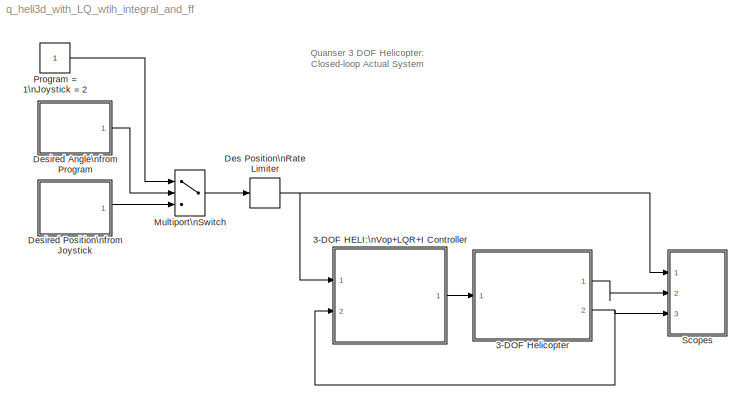
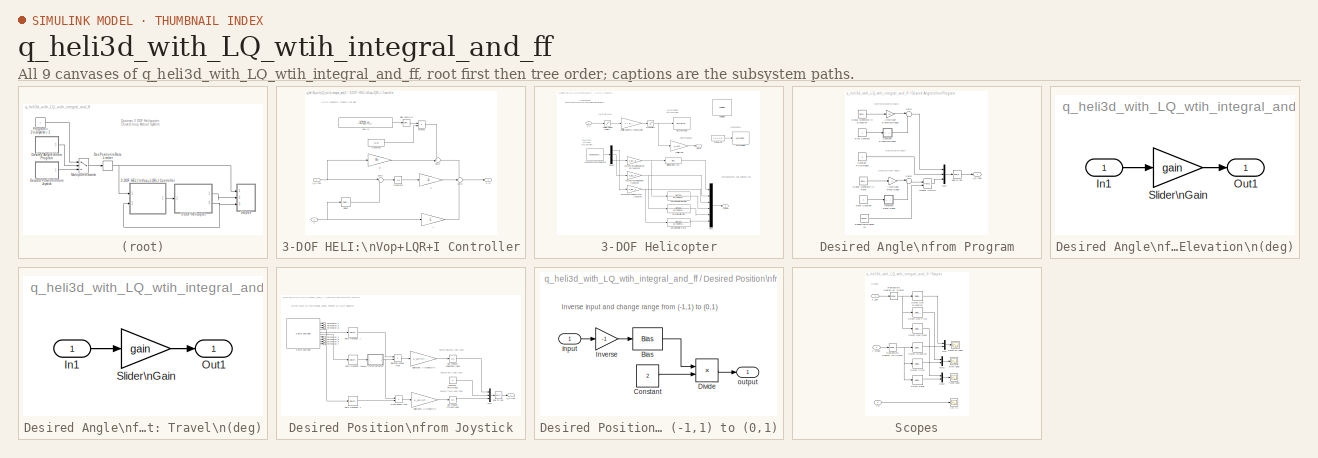
[diagram: thumbnail index - all 9 canvases of the model, root first then tree order]
MODEL q_heli3d_with_LQ_wtih_integral_and_ff
KIND model
BLOCK [SubSystem] 3-DOF HELI:\nVop+LQR+I Controller
  FunctionWithSeparateData = off
  MaskHideContents = off
  MinAlgLoopOccurrences = off
  Opaque = off
  Ports = [2, 1]
  PropExecContextOutsideSubsystem = off
  RTWSystemCode = Auto
  RequestExecContextInheritance = off
  SID = 1
BLOCK [Gain] 3-DOF HELI:\nVop+LQR+I Controller/-L
  Gain = -L
  Multiplication = Matrix(K*u)
  OutDataTypeStr = Inherit: Inherit via internal rule
  ParamDataTypeStr = Inherit: Inherit via internal rule
  SID = 157
  SaturateOnIntegerOverflow = off
BLOCK [Reference] 3-DOF HELI:\nVop+LQR+I Controller/Bias Adj\n(V//V)  REF=simulink/Math\nOperations/Slider\nGain
  FunctionWithSeparateData = off
  GeneratePreprocessorConditionals = off
  Ports = [1, 1]
  RTWMemSecDataConstants = Inherit from model
  RTWMemSecDataInternal = Inherit from model
  RTWMemSecDataParameters = Inherit from model
  RTWMemSecFuncExecute = Inherit from model
  RTWMemSecFuncInitTerm = Inherit from model
  SID = 151
  ShowPortLabels = FromPortIcon
  SourceBlock = simulink/Math\nOperations/Slider\nGain
  SourceType = Slider Gain
  SystemSampleTime = -1
  gain = 1
  high = 1
  low = 0
BLOCK [Constant] 3-DOF HELI:\nVop+LQR+I Controller/Constant
  SID = 154
  Value = [1;1]
BLOCK [Integrator] 3-DOF HELI:\nVop+LQR+I Controller/Integrator
  LimitOutput = on
  LowerSaturationLimit = -SAT_INT_ERR_TRAVEL
  Ports = [1, 1]
  SID = 158
  UpperSaturationLimit = SAT_INT_ERR_TRAVEL
BLOCK [Gain] 3-DOF HELI:\nVop+LQR+I Controller/Kr
  Gain = Kr
  Multiplication = Matrix(K*u)
  OutDataTypeStr = Inherit: Inherit via internal rule
  ParamDataTypeStr = Inherit: Inherit via internal rule
  SID = 159
  SaturateOnIntegerOverflow = off
BLOCK [Gain] 3-DOF HELI:\nVop+LQR+I Controller/Li
  Gain = -Li
  Multiplication = Matrix(K*u)
  OutDataTypeStr = Inherit: Inherit via internal rule
  ParamDataTypeStr = Inherit: Inherit via internal rule
  SID = 160
  SaturateOnIntegerOverflow = off
BLOCK [Product] 3-DOF HELI:\nVop+LQR+I Controller/Product
  InputSameDT = off
  OutDataTypeStr = Inherit: Inherit via internal rule
  Ports = [2, 1]
  SID = 153
  SaturateOnIntegerOverflow = off
BLOCK [Selector] 3-DOF HELI:\nVop+LQR+I Controller/Select
  IndexOptions = Index vector (dialog)
  Indices = [1:3]
  InputPortWidth = 6
  OutputSizes = 1
  Ports = [1, 1]
  SID = 161
BLOCK [Sum] 3-DOF HELI:\nVop+LQR+I Controller/Sum1
  IconShape = round
  InputSameDT = off
  Inputs = |+-
  OutDataTypeStr = Inherit: Inherit via internal rule
  Ports = [2, 1]
  SID = 162
  SaturateOnIntegerOverflow = off
BLOCK [Sum] 3-DOF HELI:\nVop+LQR+I Controller/Sum2
  IconShape = round
  InputSameDT = off
  Inputs = ++|
  OutDataTypeStr = Inherit: Inherit via internal rule
  Ports = [2, 1]
  SID = 165
  SaturateOnIntegerOverflow = off
BLOCK [Sum] 3-DOF HELI:\nVop+LQR+I Controller/Sum3
  IconShape = round
  InputSameDT = off
  Inputs = +++
  OutDataTypeStr = Inherit: Inherit via internal rule
  Ports = [3, 1]
  SID = 163
  SaturateOnIntegerOverflow = off
BLOCK [Constant] 3-DOF HELI:\nVop+LQR+I Controller/Vop (V)
  SID = 152
  Value = -1/2*g*(-m_w*Lw + m_f*La + m_b*La ) / (La*Kf)
BLOCK [Inport] 3-DOF HELI:\nVop+LQR+I Controller/X
  IconDisplay = Port number
  Port = 2
  SID = 156
BLOCK [Inport] 3-DOF HELI:\nVop+LQR+I Controller/X_d (rad)
  IconDisplay = Port number
  SID = 155
BLOCK [Outport] 3-DOF HELI:\nVop+LQR+I Controller/u (V)
  IconDisplay = Port number
  SID = 164
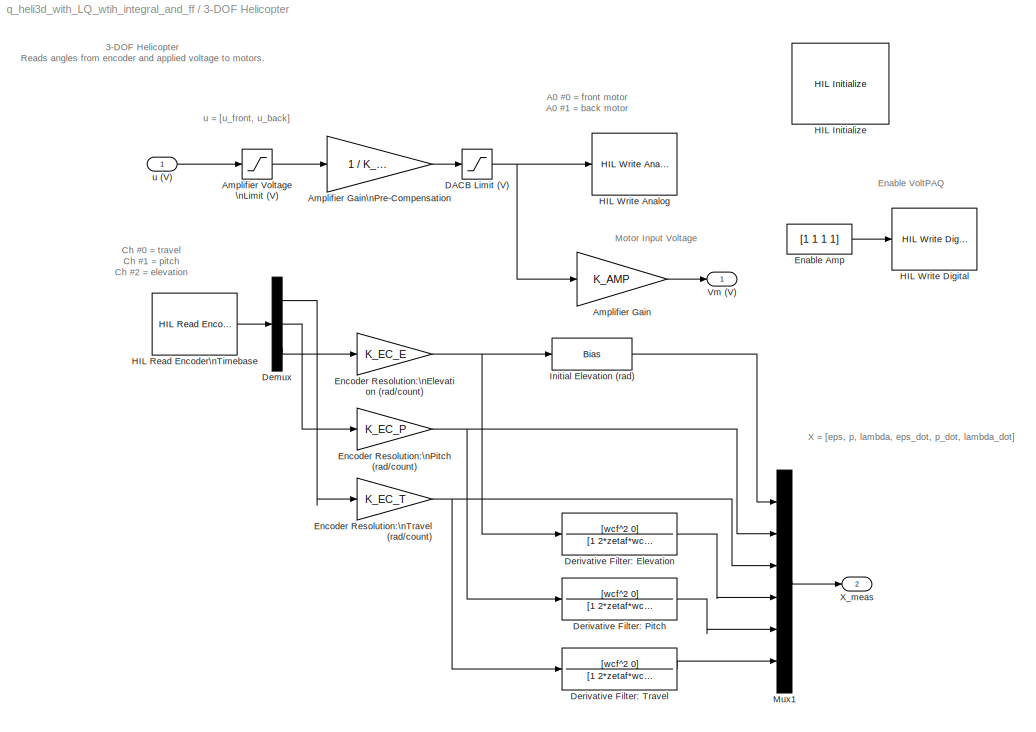
BLOCK [SubSystem] 3-DOF Helicopter
  FunctionWithSeparateData = off
  MaskHideContents = off
  MinAlgLoopOccurrences = off
  Opaque = off
  Ports = [1, 2]
  PropExecContextOutsideSubsystem = off
  RTWSystemCode = Auto
  RequestExecContextInheritance = off
  SID = 37
BLOCK [Gain] 3-DOF Helicopter/Amplifier Gain
  Gain = K_AMP
  Multiplication = Matrix(K*u)
  SID = 39
BLOCK [Gain] 3-DOF Helicopter/Amplifier Gain\nPre-Compensation
  Gain = 1 / K_AMP
  Multiplication = Matrix(K*u)
  SID = 40
BLOCK [Saturate] 3-DOF Helicopter/Amplifier Voltage \nLimit (V)
  InputPortMap = u0
  LowerLimit = -VMAX_AMP
  Ports = [1, 1]
  SID = 41
  UpperLimit = VMAX_AMP
BLOCK [Saturate] 3-DOF Helicopter/DACB Limit (V)
  InputPortMap = u0
  LowerLimit = -VMAX_DAC
  Ports = [1, 1]
  SID = 42
  UpperLimit = VMAX_DAC
BLOCK [Demux] 3-DOF Helicopter/Demux
  DisplayOption = bar
  Outputs = 3
  Ports = [1, 3]
  SID = 43
BLOCK [TransferFcn] 3-DOF Helicopter/Derivative Filter: Elevation
  Denominator = [1 2*zetaf*wcf wcf^2]
  Numerator = [wcf^2 0]
  SID = 44
BLOCK [TransferFcn] 3-DOF Helicopter/Derivative Filter: Pitch
  Denominator = [1 2*zetaf*wcf wcf^2]
  Numerator = [wcf^2 0]
  SID = 45
BLOCK [TransferFcn] 3-DOF Helicopter/Derivative Filter: Travel
  Denominator = [1 2*zetaf*wcf wcf^2]
  Numerator = [wcf^2 0]
  SID = 46
BLOCK [Constant] 3-DOF Helicopter/Enable Amp
  SID = 47
  Value = [1 1 1 1]
BLOCK [Gain] 3-DOF Helicopter/Encoder Resolution:\nElevation (rad//count)
  Gain = K_EC_E
  OutDataTypeStr = Inherit: Inherit via internal rule
  ParamDataTypeStr = Inherit: Inherit via internal rule
  SID = 48
  SaturateOnIntegerOverflow = off
BLOCK [Gain] 3-DOF Helicopter/Encoder Resolution:\nPitch (rad//count)
  Gain = K_EC_P
  OutDataTypeStr = Inherit: Inherit via internal rule
  ParamDataTypeStr = Inherit: Inherit via internal rule
  SID = 49
  SaturateOnIntegerOverflow = off
BLOCK [Gain] 3-DOF Helicopter/Encoder Resolution:\nTravel (rad//count)
  Gain = K_EC_T
  OutDataTypeStr = Inherit: Inherit via internal rule
  ParamDataTypeStr = Inherit: Inherit via internal rule
  SID = 50
  SaturateOnIntegerOverflow = off
BLOCK [Reference] 3-DOF Helicopter/HIL Initialize  REF=quarc_library/Data Acquisition/Generic/Configuration/HIL Initialize
  AttributesFormatString = %<object_name> (%<board_type>-%<board_number>)
  Ports = []
  SID = 51
  SourceBlock = quarc_library/Data Acquisition/Generic/Configuration/HIL Initialize
  SourceType = HIL Initialize
  UserData = DataTag0
  UserDataPersistent = on
  active = on
  analog_input_channels = [0:7]
  analog_input_maximums = 10
  analog_input_minimums = -10
  analog_output_channels = [0:7]
  analog_output_maximums = 10
  analog_output_minimums = -10
  board_number = 0
  board_options = update_rate=normal
  board_type = q8_usb
  clock_modes = []
  digital_input_channels = [4:7]
  digital_output_channels = [0:3]
  digital_output_configuration = []
  encoder_channels = [0:7]
  encoder_filter_frequency = []
  exclusive = off
  final_analog_outputs = [0]
  final_digital_outputs = [0]
  final_other_outputs = []
  final_pwm_outputs = [0]
  hardware_clocks = [0:2]
  initial_analog_outputs = [0]
  initial_clock_frequencies = []
  initial_digital_outputs = [0]
  initial_encoder_counts = [0]
  initial_other_outputs = []
  initial_pwm_outputs = [0]
  object_name = HIL-1
  other_output_channels = []
  pwm_alignment = [0]
  pwm_channels = [0:7]
  pwm_configuration = [0]
  pwm_frequency = 99.532799999999995e6/4095
  pwm_leading_deadband = [0]
  pwm_modes = 0
  pwm_polarity = [1]
  pwm_trailing_deadband = [0]
  quadrature = [4]
  set_analog_input_params_at_start = on
  set_analog_input_params_at_switch_in = off
  set_analog_output_params_at_start = on
  set_analog_output_params_at_switch_in = off
  set_analog_outputs_at_start = on
  set_analog_outputs_at_switch_in = off
  set_analog_outputs_at_switch_out = off
  set_analog_outputs_at_terminate = on
  set_analog_outputs_on_watchdog = off
  set_clock_frequencies_at_start = off
  set_clock_frequencies_at_switch_in = off
  set_clock_params_at_start = off
  set_clock_params_at_switch_in = off
  set_digital_output_params_at_start = off
  set_digital_output_params_at_switch_in = off
  set_digital_outputs_at_start = on
  set_digital_outputs_at_switch_in = off
  set_digital_outputs_at_switch_out = off
  set_digital_outputs_at_terminate = on
  set_digital_outputs_on_watchdog = off
  set_encoder_counts_at_start = on
  set_encoder_counts_at_switch_in = off
  set_encoder_params_at_start = on
  set_encoder_params_at_switch_in = off
  set_other_outputs_at_start = off
  set_other_outputs_at_switch_in = off
  set_other_outputs_at_switch_out = off
  set_other_outputs_at_terminate = off
  set_other_outputs_on_watchdog = off
  set_pwm_outputs_at_start = on
  set_pwm_outputs_at_switch_in = off
  set_pwm_outputs_at_switch_out = off
  set_pwm_outputs_at_terminate = on
  set_pwm_outputs_on_watchdog = off
  set_pwm_params_at_start = on
  set_pwm_params_at_switch_in = off
  watchdog_analog_outputs = 0
  watchdog_digital_outputs = [0]
  watchdog_other_outputs = []
  watchdog_pwm_outputs = [0]
BLOCK [Reference] 3-DOF Helicopter/HIL Read Encoder\nTimebase  REF=quarc_library/Data Acquisition/Generic/Timebases/HIL Read Encoder\nTimebase
  AttributesFormatString = (%<object_name>)
  Ports = [0, 1]
  SID = 52
  SourceBlock = quarc_library/Data Acquisition/Generic/Timebases/HIL Read Encoder\nTimebase
  SourceType = HIL Read Encoder Timebase
  UserData = DataTag1
  UserDataPersistent = on
  active = on
  channels = [0:2]
  clock = 0
  data_type = double
  data_type_mode = Inherit via back propagation
  object_name = HIL-1
  samples_in_buffer = max(ceil(1/qc_get_step_size), 1)
  vector_output = on
BLOCK [Reference] 3-DOF Helicopter/HIL Write Analog  REF=quarc_library/Data Acquisition/Generic/Immediate I//O/HIL Write Analog
  AttributesFormatString = (%<object_name>)
  Ports = [1]
  SID = 53
  SourceBlock = quarc_library/Data Acquisition/Generic/Immediate I//O/HIL Write Analog
  SourceType = HIL Write Analog
  UserData = DataTag2
  UserDataPersistent = on
  active = off
  channels = [0,1]
  object_name = HIL-1
  sample_time = -1
  vector_input = on
BLOCK [Reference] 3-DOF Helicopter/HIL Write Digital  REF=quarc_library/Data Acquisition/Generic/Immediate I//O/HIL Write Digital
  AttributesFormatString = (%<object_name>)
  Ports = [1]
  SID = 54
  SourceBlock = quarc_library/Data Acquisition/Generic/Immediate I//O/HIL Write Digital
  SourceType = HIL Write Digital
  UserData = DataTag3
  UserDataPersistent = on
  active = off
  channels = [0:3]
  object_name = HIL-1
  sample_time = -1
  vector_input = on
BLOCK [Bias] 3-DOF Helicopter/Initial Elevation (rad)
  Bias = elev_0
  SID = 55
  SaturateOnIntegerOverflow = off
BLOCK [Mux] 3-DOF Helicopter/Mux1
  DisplayOption = bar
  Inputs = 6
  Ports = [6, 1]
  SID = 56
BLOCK [Outport] 3-DOF Helicopter/Vm (V)
  IconDisplay = Port number
  SID = 57
BLOCK [Outport] 3-DOF Helicopter/X_meas
  IconDisplay = Port number
  Port = 2
  SID = 58
BLOCK [Inport] 3-DOF Helicopter/u (V)
  IconDisplay = Port number
  SID = 38
BLOCK [RateLimiter] Des Position\nRate Limiter
  FallingSlewLimit = -CMD_RATE_LIMIT
  RisingSlewLimit = CMD_RATE_LIMIT
  SID = 59
  SampleTimeMode = inherited
BLOCK [SubSystem] Desired Angle\nfrom Program
  FunctionWithSeparateData = off
  MaskHideContents = off
  MinAlgLoopOccurrences = off
  Opaque = off
  Ports = [0, 1]
  PropExecContextOutsideSubsystem = off
  RTWSystemCode = Auto
  RequestExecContextInheritance = off
  SID = 60
BLOCK [Gain] Desired Angle\nfrom Program/Amplitude: Elevation\n(deg)
  Gain = 10
  OutDataTypeStr = Inherit: Inherit via internal rule
  ParamDataTypeStr = Inherit: Inherit via internal rule
  SID = 61
  SaturateOnIntegerOverflow = off
BLOCK [Gain] Desired Angle\nfrom Program/Amplitude: Travel\n(deg)
  Gain = 0
  OutDataTypeStr = Inherit: Inherit via internal rule
  ParamDataTypeStr = Inherit: Inherit via internal rule
  SID = 62
  SaturateOnIntegerOverflow = off
BLOCK [SubSystem] Desired Angle\nfrom Program/Constant: Elevation\n(deg)
  CloseFcn = slideg Close
  CopyFcn = slideg Copy
  DeleteFcn = slideg DeleteBlock
  FunctionWithSeparateData = off
  LoadFcn = slideg Load
  MaskCallbackString = ||
  MaskCapabilities = slmaskedcaps(gcbh)
  MaskDisplay = disp(gain)
  MaskEnableString = on,on,on
  MaskHideContents = off
  MaskIconFrame = on
  MaskIconOpaque = on
  MaskIconRotate = none
  MaskIconUnits = autoscale
  MaskPortRotate = default
  MaskPromptString = Low|Gain|High
  MaskStyleString = edit,edit,edit
  MaskToolTipString = on,on,on
  MaskTunableValueString = on,on,on
  MaskType = Slider Gain
  MaskValueString = -27.5|0|30
  MaskVariables = low=@1;gain=@2;high=@3;
  MaskVisibilityString = on,on,on
  MinAlgLoopOccurrences = off
  NameChangeFcn = slideg NameChange
  Opaque = off
  OpenFcn = slideg Open
  ParentCloseFcn = slideg ParentClose
  Ports = [1, 1]
  PropExecContextOutsideSubsystem = off
  RTWSystemCode = Auto
  RequestExecContextInheritance = off
  SID = 63
  StartFcn = slideg StartFcn
  StopFcn = slideg StopFcn
BLOCK [Inport] Desired Angle\nfrom Program/Constant: Elevation\n(deg)/In1
  IconDisplay = Port number
  SID = 64
BLOCK [Outport] Desired Angle\nfrom Program/Constant: Elevation\n(deg)/Out1
  IconDisplay = Port number
  SID = 66
BLOCK [Gain] Desired Angle\nfrom Program/Constant: Elevation\n(deg)/Slider\nGain
  Gain = gain
  SID = 65
BLOCK [Constant] Desired Angle\nfrom Program/Constant: Pitch\n(deg)
  SID = 67
  Value = 0
BLOCK [SubSystem] Desired Angle\nfrom Program/Constant: Travel\n(deg)
  CloseFcn = slideg Close
  CopyFcn = slideg Copy
  DeleteFcn = slideg DeleteBlock
  FunctionWithSeparateData = off
  LoadFcn = slideg Load
  MaskCallbackString = ||
  MaskCapabilities = slmaskedcaps(gcbh)
  MaskDisplay = disp(gain)
  MaskEnableString = on,on,on
  MaskHideContents = off
  MaskIconFrame = on
  MaskIconOpaque = on
  MaskIconRotate = none
  MaskIconUnits = autoscale
  MaskPortRotate = default
  MaskPromptString = Low|Gain|High
  MaskStyleString = edit,edit,edit
  MaskToolTipString = on,on,on
  MaskTunableValueString = on,on,on
  MaskType = Slider Gain
  MaskValueString = -90|0|90
  MaskVariables = low=@1;gain=@2;high=@3;
  MaskVisibilityString = on,on,on
  MinAlgLoopOccurrences = off
  NameChangeFcn = slideg NameChange
  Opaque = off
  OpenFcn = slideg Open
  ParentCloseFcn = slideg ParentClose
  Ports = [1, 1]
  PropExecContextOutsideSubsystem = off
  RTWSystemCode = Auto
  RequestExecContextInheritance = off
  SID = 68
  StartFcn = slideg StartFcn
  StopFcn = slideg StopFcn
BLOCK [Inport] Desired Angle\nfrom Program/Constant: Travel\n(deg)/In1
  IconDisplay = Port number
  SID = 69
BLOCK [Outport] Desired Angle\nfrom Program/Constant: Travel\n(deg)/Out1
  IconDisplay = Port number
  SID = 71
BLOCK [Gain] Desired Angle\nfrom Program/Constant: Travel\n(deg)/Slider\nGain
  Gain = gain
  SID = 70
BLOCK [Constant] Desired Angle\nfrom Program/Elev Constant
  SID = 72
BLOCK [Reference] Desired Angle\nfrom Program/Manual Switch  REF=simulink/Signal\nRouting/Manual Switch
  FunctionWithSeparateData = off
  GeneratePreprocessorConditionals = off
  Ports = [2, 1]
  RTWMemSecDataConstants = Inherit from model
  RTWMemSecDataInternal = Inherit from model
  RTWMemSecDataParameters = Inherit from model
  RTWMemSecFuncExecute = Inherit from model
  RTWMemSecFuncInitTerm = Inherit from model
  SID = 73
  ShowPortLabels = FromPortIcon
  SourceBlock = simulink/Signal\nRouting/Manual Switch
  SourceType = Manual Switch
  SystemSampleTime = -1
  action = 0
  sw = 1
  varsize = off
BLOCK [Mux] Desired Angle\nfrom Program/Mux
  DisplayOption = bar
  Inputs = 3
  Ports = [3, 1]
  SID = 74
BLOCK [Reference] Desired Angle\nfrom Program/Repeating\nSequence  REF=simulink/Sources/Repeating\nSequence
  FunctionWithSeparateData = off
  GeneratePreprocessorConditionals = off
  Ports = [0, 1]
  RTWMemSecDataConstants = Inherit from model
  RTWMemSecDataInternal = Inherit from model
  RTWMemSecDataParameters = Inherit from model
  RTWMemSecFuncExecute = Inherit from model
  RTWMemSecFuncInitTerm = Inherit from model
  SID = 75
  ShowPortLabels = FromPortIcon
  SourceBlock = simulink/Sources/Repeating\nSequence
  SourceType = Repeating table
  SystemSampleTime = -1
  rep_seq_t = [0  15 16  30  45  46 60 ]
  rep_seq_y = [0 0 30 30  30 0 0 ]
BLOCK [SignalGenerator] Desired Angle\nfrom Program/Signal Generator:\nElevation
  Frequency = 0.04
  Ports = [0, 1]
  SID = 76
  WaveForm = square
BLOCK [SignalGenerator] Desired Angle\nfrom Program/Signal Generator:\nTravel
  Frequency = 0.03
  Ports = [0, 1]
  SID = 77
  WaveForm = square
BLOCK [Sum] Desired Angle\nfrom Program/Sum1
  IconShape = round
  InputSameDT = off
  Inputs = |++
  OutDataTypeStr = Inherit: Inherit via internal rule
  Ports = [2, 1]
  SID = 78
  SaturateOnIntegerOverflow = off
BLOCK [Sum] Desired Angle\nfrom Program/Sum2
  IconShape = round
  InputSameDT = off
  Inputs = |++
  OutDataTypeStr = Inherit: Inherit via internal rule
  Ports = [2, 1]
  SID = 79
  SaturateOnIntegerOverflow = off
BLOCK [Constant] Desired Angle\nfrom Program/Travel Constant
  SID = 80
BLOCK [Reference] Desired Angle\nfrom Program/deg to rad  REF=simulink_extras/Transformations/Degrees to\nRadians
  FunctionWithSeparateData = off
  GeneratePreprocessorConditionals = off
  Ports = [1, 1]
  RTWMemSecDataConstants = Inherit from model
  RTWMemSecDataInternal = Inherit from model
  RTWMemSecDataParameters = Inherit from model
  RTWMemSecFuncExecute = Inherit from model
  RTWMemSecFuncInitTerm = Inherit from model
  SID = 81
  ShowPortLabels = FromPortIcon
  SourceBlock = simulink_extras/Transformations/Degrees to\nRadians
  SourceType = DegreesToRadians
  SystemSampleTime = -1
BLOCK [Outport] Desired Angle\nfrom Program/x_d (rad)
  IconDisplay = Port number
  SID = 82
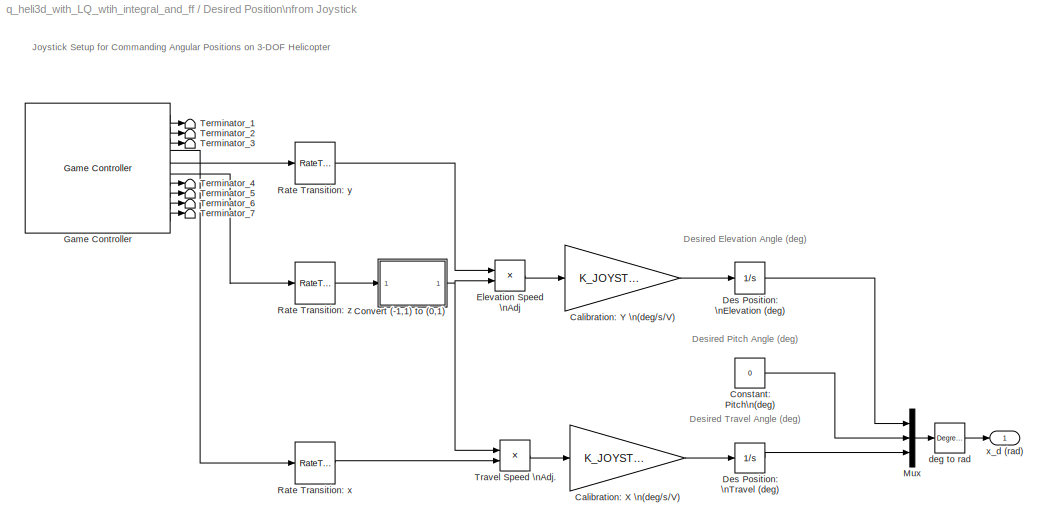
BLOCK [SubSystem] Desired Position\nfrom Joystick
  FunctionWithSeparateData = off
  MaskHideContents = off
  MinAlgLoopOccurrences = off
  Opaque = off
  Ports = [0, 1]
  PropExecContextOutsideSubsystem = off
  RTWSystemCode = Auto
  RequestExecContextInheritance = off
  SID = 83
BLOCK [Gain] Desired Position\nfrom Joystick/Calibration: X \n(deg//s//V)
  Gain = K_JOYSTICK_X
  OutDataTypeStr = Inherit: Inherit via internal rule
  ParamDataTypeStr = Inherit: Inherit via internal rule
  SID = 84
  SaturateOnIntegerOverflow = off
BLOCK [Gain] Desired Position\nfrom Joystick/Calibration: Y \n(deg//s//V)
  Gain = K_JOYSTICK_Y
  OutDataTypeStr = Inherit: Inherit via internal rule
  ParamDataTypeStr = Inherit: Inherit via internal rule
  SID = 85
  SaturateOnIntegerOverflow = off
BLOCK [Constant] Desired Position\nfrom Joystick/Constant: Pitch\n(deg)
  SID = 86
  Value = 0
BLOCK [SubSystem] Desired Position\nfrom Joystick/Convert (-1,1) to (0,1)
  FunctionWithSeparateData = off
  MaskHideContents = off
  MinAlgLoopOccurrences = off
  Opaque = off
  Ports = [1, 1]
  PropExecContextOutsideSubsystem = off
  RTWSystemCode = Auto
  RequestExecContextInheritance = off
  SID = 87
BLOCK [Bias] Desired Position\nfrom Joystick/Convert (-1,1) to (0,1)/Bias
  Bias = 1
  SID = 89
  SaturateOnIntegerOverflow = off
BLOCK [Constant] Desired Position\nfrom Joystick/Convert (-1,1) to (0,1)/Constant
  SID = 90
  Value = 2
BLOCK [Product] Desired Position\nfrom Joystick/Convert (-1,1) to (0,1)/Divide
  InputSameDT = off
  Inputs = */
  OutDataTypeStr = Inherit: Inherit via internal rule
  Ports = [2, 1]
  RndMeth = Floor
  SID = 91
  SaturateOnIntegerOverflow = off
BLOCK [Gain] Desired Position\nfrom Joystick/Convert (-1,1) to (0,1)/Inverse
  Gain = -1
  OutDataTypeStr = Inherit: Inherit via internal rule
  ParamDataTypeStr = Inherit: Inherit via internal rule
  SID = 92
  SaturateOnIntegerOverflow = off
BLOCK [Inport] Desired Position\nfrom Joystick/Convert (-1,1) to (0,1)/input
  IconDisplay = Port number
  SID = 88
BLOCK [Outport] Desired Position\nfrom Joystick/Convert (-1,1) to (0,1)/output
  IconDisplay = Port number
  SID = 93
BLOCK [Integrator] Desired Position\nfrom Joystick/Des Position: \nElevation (deg)
  InitialCondition = elev_0*180/pi
  LimitOutput = on
  LowerSaturationLimit = CMD_ELEV_POS_LIMIT_LOWER
  Ports = [1, 1]
  SID = 94
  UpperSaturationLimit = CMD_ELEV_POS_LIMIT_UPPER
BLOCK [Integrator] Desired Position\nfrom Joystick/Des Position: \nTravel (deg)
  LowerSaturationLimit = CMD_TRAVEL_POS_LIMIT_LOWER
  Ports = [1, 1]
  SID = 95
  UpperSaturationLimit = CMD_TRAVEL_POS_LIMIT_UPPER
BLOCK [Product] Desired Position\nfrom Joystick/Elevation Speed \nAdj
  InputSameDT = off
  OutDataTypeStr = Inherit: Inherit via internal rule
  Ports = [2, 1]
  SID = 96
  SaturateOnIntegerOverflow = off
BLOCK [Reference] Desired Position\nfrom Joystick/Game Controller  REF=quarc_library/Devices/Peripherals/Target/Game Controller
  Ports = [0, 10]
  SID = 97
  SourceBlock = quarc_library/Devices/Peripherals/Target/Game Controller
  SourceType = Game Controller
  auto_center = off
  buffer_size = 12
  controller = 1
  deadzone = []
  enabled = on
  sample_time = max(qc_get_step_size, 0.01)
  saturation = []
BLOCK [Mux] Desired Position\nfrom Joystick/Mux
  DisplayOption = bar
  Inputs = 3
  Ports = [3, 1]
  SID = 98
BLOCK [RateTransition] Desired Position\nfrom Joystick/Rate Transition: x
  SID = 99
BLOCK [RateTransition] Desired Position\nfrom Joystick/Rate Transition: y
  SID = 100
BLOCK [RateTransition] Desired Position\nfrom Joystick/Rate Transition: z
  SID = 101
BLOCK [Terminator] Desired Position\nfrom Joystick/Terminator_1
  SID = 132
BLOCK [Terminator] Desired Position\nfrom Joystick/Terminator_2
  SID = 133
BLOCK [Terminator] Desired Position\nfrom Joystick/Terminator_3
  SID = 134
BLOCK [Terminator] Desired Position\nfrom Joystick/Terminator_4
  SID = 135
BLOCK [Terminator] Desired Position\nfrom Joystick/Terminator_5
  SID = 136
BLOCK [Terminator] Desired Position\nfrom Joystick/Terminator_6
  SID = 137
BLOCK [Terminator] Desired Position\nfrom Joystick/Terminator_7
  SID = 138
BLOCK [Product] Desired Position\nfrom Joystick/Travel Speed \nAdj.
  InputSameDT = off
  OutDataTypeStr = Inherit: Inherit via internal rule
  Ports = [2, 1]
  SID = 108
  SaturateOnIntegerOverflow = off
BLOCK [Reference] Desired Position\nfrom Joystick/deg to rad  REF=simulink_extras/Transformations/Degrees to\nRadians
  FunctionWithSeparateData = off
  GeneratePreprocessorConditionals = off
  Ports = [1, 1]
  RTWMemSecDataConstants = Inherit from model
  RTWMemSecDataInternal = Inherit from model
  RTWMemSecDataParameters = Inherit from model
  RTWMemSecFuncExecute = Inherit from model
  RTWMemSecFuncInitTerm = Inherit from model
  SID = 109
  ShowPortLabels = FromPortIcon
  SourceBlock = simulink_extras/Transformations/Degrees to\nRadians
  SourceType = DegreesToRadians
  SystemSampleTime = -1
BLOCK [Outport] Desired Position\nfrom Joystick/x_d (rad)
  IconDisplay = Port number
  SID = 110
BLOCK [MultiPortSwitch] Multiport\nSwitch
  InputSameDT = off
  Inputs = 2
  Ports = [3, 1]
  SID = 111
  SaturateOnIntegerOverflow = off
  zeroidx = off
BLOCK [Constant] Program = 1\nJoystick = 2
  SID = 112
BLOCK [SubSystem] Scopes
  FunctionWithSeparateData = off
  MaskHideContents = off
  MinAlgLoopOccurrences = off
  Opaque = off
  Ports = [3]
  PropExecContextOutsideSubsystem = off
  RTWSystemCode = Auto
  RequestExecContextInheritance = off
  SID = 113
BLOCK [Mux] Scopes/Mux
  DisplayOption = bar
  Inputs = 2
  Ports = [2, 1]
  SID = 117
BLOCK [Mux] Scopes/Mux1
  DisplayOption = bar
  Inputs = 2
  Ports = [2, 1]
  SID = 118
BLOCK [Mux] Scopes/Mux2
  DisplayOption = bar
  Inputs = 2
  Ports = [2, 1]
  SID = 119
BLOCK [Reference] Scopes/Radians\nto Degrees -\nDes. States  REF=simulink_extras/Transformations/Radians\nto Degrees
  FunctionWithSeparateData = off
  GeneratePreprocessorConditionals = off
  Ports = [1, 1]
  RTWMemSecDataConstants = Inherit from model
  RTWMemSecDataInternal = Inherit from model
  RTWMemSecDataParameters = Inherit from model
  RTWMemSecFuncExecute = Inherit from model
  RTWMemSecFuncInitTerm = Inherit from model
  SID = 120
  ShowPortLabels = FromPortIcon
  SourceBlock = simulink_extras/Transformations/Radians\nto Degrees
  SourceType = RadiansToDegrees
  SystemSampleTime = -1
BLOCK [Reference] Scopes/Radians\nto Degrees -\nSim States  REF=simulink_extras/Transformations/Radians\nto Degrees
  FunctionWithSeparateData = off
  GeneratePreprocessorConditionals = off
  Ports = [1, 1]
  RTWMemSecDataConstants = Inherit from model
  RTWMemSecDataInternal = Inherit from model
  RTWMemSecDataParameters = Inherit from model
  RTWMemSecFuncExecute = Inherit from model
  RTWMemSecFuncInitTerm = Inherit from model
  SID = 121
  ShowPortLabels = FromPortIcon
  SourceBlock = simulink_extras/Transformations/Radians\nto Degrees
  SourceType = RadiansToDegrees
  SystemSampleTime = -1
BLOCK [Selector] Scopes/Select Des Elevation
  IndexOptions = Index vector (dialog)
  Indices = 1
  InputPortWidth = 3
  OutputSizes = 1
  Ports = [1, 1]
  SID = 122
BLOCK [Selector] Scopes/Select Des Pitch
  IndexOptions = Index vector (dialog)
  Indices = 2
  InputPortWidth = 3
  OutputSizes = 1
  Ports = [1, 1]
  SID = 123
BLOCK [Selector] Scopes/Select Des Travel
  IndexOptions = Index vector (dialog)
  Indices = 3
  InputPortWidth = 3
  OutputSizes = 1
  Ports = [1, 1]
  SID = 124
BLOCK [Selector] Scopes/Select Elevation
  IndexOptions = Index vector (dialog)
  Indices = 1
  InputPortWidth = 6
  OutputSizes = 1
  Ports = [1, 1]
  SID = 125
BLOCK [Selector] Scopes/Select Pitch
  IndexOptions = Index vector (dialog)
  Indices = 2
  InputPortWidth = 6
  OutputSizes = 1
  Ports = [1, 1]
  SID = 126
BLOCK [Selector] Scopes/Select Travel
  IndexOptions = Index vector (dialog)
  Indices = 3
  InputPortWidth = 6
  OutputSizes = 1
  Ports = [1, 1]
  SID = 127
BLOCK [Inport] Scopes/Vm
  IconDisplay = Port number
  Port = 2
  SID = 115
BLOCK [Scope] Scopes/Vm (V)
  DataFormat = Array
  Floating = off
  LimitDataPoints = off
  NumInputPorts = 1
  Ports = [1]
  SID = 128
  SampleTime = 0
  SaveName = ScopeData4
  TickLabels = on
  TimeRange = 20
  YMax = 25
  YMin = 0
BLOCK [Inport] Scopes/X_des
  IconDisplay = Port number
  SID = 114
BLOCK [Inport] Scopes/X_meas
  IconDisplay = Port number
  Port = 3
  SID = 116
BLOCK [Scope] Scopes/elevation (deg)
  DataFormat = Array
  Floating = off
  LimitDataPoints = off
  NumInputPorts = 1
  Ports = [1]
  SID = 129
  SampleTime = 0
  TickLabels = on
  TimeRange = 140
  YMax = 12.5
  YMin = -27.5
BLOCK [Scope] Scopes/pitch (deg)
  DataFormat = Array
  Floating = off
  LimitDataPoints = off
  NumInputPorts = 1
  Ports = [1]
  SID = 130
  SampleTime = 0
  SaveName = ScopeData1
  TickLabels = on
  TimeRange = 20
  YMax = 80
  YMin = -80
  ZoomMode = xonly
BLOCK [Scope] Scopes/travel(deg)
  DataFormat = Array
  Floating = off
  LimitDataPoints = off
  NumInputPorts = 1
  Ports = [1]
  SID = 131
  SampleTime = 0
  SaveName = ScopeData2
  TickLabels = on
  TimeRange = 20
  YMax = 80
  YMin = -80
ANNOTATION (root): Quanser 3 DOF Helicopter:\nClosed-loop Actual System
ANNOTATION 3-DOF HELI:\nVop+LQR+I Controller: 3-DOF Helicopter: Position Controller
ANNOTATION 3-DOF Helicopter: 3-DOF Helicopter\nReads angles from encoder and applied voltage to motors.
ANNOTATION 3-DOF Helicopter: A0 #0 = front motor\nA0 #1 = back motor
ANNOTATION 3-DOF Helicopter: Ch #0 = travel\nCh #1 = pitch\nCh #2 = elevation
ANNOTATION 3-DOF Helicopter: Enable VoltPAQ
ANNOTATION 3-DOF Helicopter: Motor Input Voltage
ANNOTATION 3-DOF Helicopter: X = [eps, p, lambda, eps_dot, p_dot, lambda_dot]
ANNOTATION 3-DOF Helicopter: u = [u_front, u_back]
ANNOTATION Desired Angle\nfrom Program: Desired elevation angle
ANNOTATION Desired Angle\nfrom Program: Desired pitch angle
ANNOTATION Desired Angle\nfrom Program: Desired travel angle
ANNOTATION Desired Position\nfrom Joystick: Desired Elevation Angle (deg)
ANNOTATION Desired Position\nfrom Joystick: Desired Pitch Angle (deg)
ANNOTATION Desired Position\nfrom Joystick: Desired Travel Angle (deg)
ANNOTATION Desired Position\nfrom Joystick: Joystick Setup for Commanding Angular Positions on 3-DOF Helicopter
ANNOTATION Desired Position\nfrom Joystick/Convert (-1,1) to (0,1): Inverse input and change range from (-1,1) to (0,1)
ANNOTATION Scopes: Scopes
LINE 3-DOF HELI:\nVop+LQR+I Controller/-L:1 -> 3-DOF HELI:\nVop+LQR+I Controller/Sum3:3
LINE 3-DOF HELI:\nVop+LQR+I Controller/Bias Adj\n(V//V):1 -> 3-DOF HELI:\nVop+LQR+I Controller/Product:1
LINE 3-DOF HELI:\nVop+LQR+I Controller/Constant:1 -> 3-DOF HELI:\nVop+LQR+I Controller/Product:2
LINE 3-DOF HELI:\nVop+LQR+I Controller/Integrator:1 -> 3-DOF HELI:\nVop+LQR+I Controller/Li:1
LINE 3-DOF HELI:\nVop+LQR+I Controller/Kr:1 -> 3-DOF HELI:\nVop+LQR+I Controller/Sum2:2
LINE 3-DOF HELI:\nVop+LQR+I Controller/Li:1 -> 3-DOF HELI:\nVop+LQR+I Controller/Sum3:2
LINE 3-DOF HELI:\nVop+LQR+I Controller/Product:1 -> 3-DOF HELI:\nVop+LQR+I Controller/Sum2:1
LINE 3-DOF HELI:\nVop+LQR+I Controller/Select:1 -> 3-DOF HELI:\nVop+LQR+I Controller/Sum1:2
LINE 3-DOF HELI:\nVop+LQR+I Controller/Sum1:1 -> 3-DOF HELI:\nVop+LQR+I Controller/Integrator:1
LINE 3-DOF HELI:\nVop+LQR+I Controller/Sum2:1 -> 3-DOF HELI:\nVop+LQR+I Controller/Sum3:1
LINE 3-DOF HELI:\nVop+LQR+I Controller/Sum3:1 -> 3-DOF HELI:\nVop+LQR+I Controller/u (V):1
LINE 3-DOF HELI:\nVop+LQR+I Controller/Vop (V):1 -> 3-DOF HELI:\nVop+LQR+I Controller/Bias Adj\n(V//V):1
NET 3-DOF HELI:\nVop+LQR+I Controller/X:1 -> 3-DOF HELI:\nVop+LQR+I Controller/-L:1, 3-DOF HELI:\nVop+LQR+I Controller/Select:1
NET 3-DOF HELI:\nVop+LQR+I Controller/X_d (rad):1 -> 3-DOF HELI:\nVop+LQR+I Controller/Kr:1, 3-DOF HELI:\nVop+LQR+I Controller/Sum1:1
LINE 3-DOF HELI:\nVop+LQR+I Controller:1 -> 3-DOF Helicopter:1
LINE 3-DOF Helicopter/Amplifier Gain:1 -> 3-DOF Helicopter/Vm (V):1
LINE 3-DOF Helicopter/Amplifier Gain\nPre-Compensation:1 -> 3-DOF Helicopter/DACB Limit (V):1
LINE 3-DOF Helicopter/Amplifier Voltage \nLimit (V):1 -> 3-DOF Helicopter/Amplifier Gain\nPre-Compensation:1
NET 3-DOF Helicopter/DACB Limit (V):1 -> 3-DOF Helicopter/Amplifier Gain:1, 3-DOF Helicopter/HIL Write Analog:1
LINE 3-DOF Helicopter/Demux:1 -> 3-DOF Helicopter/Encoder Resolution:\nTravel (rad//count):1
LINE 3-DOF Helicopter/Demux:2 -> 3-DOF Helicopter/Encoder Resolution:\nPitch (rad//count):1
LINE 3-DOF Helicopter/Demux:3 -> 3-DOF Helicopter/Encoder Resolution:\nElevation (rad//count):1
LINE 3-DOF Helicopter/Derivative Filter: Elevation:1 -> 3-DOF Helicopter/Mux1:4
LINE 3-DOF Helicopter/Derivative Filter: Pitch:1 -> 3-DOF Helicopter/Mux1:5
LINE 3-DOF Helicopter/Derivative Filter: Travel:1 -> 3-DOF Helicopter/Mux1:6
LINE 3-DOF Helicopter/Enable Amp:1 -> 3-DOF Helicopter/HIL Write Digital:1
NET 3-DOF Helicopter/Encoder Resolution:\nElevation (rad//count):1 -> 3-DOF Helicopter/Derivative Filter: Elevation:1, 3-DOF Helicopter/Initial Elevation (rad):1
NET 3-DOF Helicopter/Encoder Resolution:\nPitch (rad//count):1 -> 3-DOF Helicopter/Derivative Filter: Pitch:1, 3-DOF Helicopter/Mux1:2
NET 3-DOF Helicopter/Encoder Resolution:\nTravel (rad//count):1 -> 3-DOF Helicopter/Derivative Filter: Travel:1, 3-DOF Helicopter/Mux1:3
LINE 3-DOF Helicopter/HIL Read Encoder\nTimebase:1 -> 3-DOF Helicopter/Demux:1
LINE 3-DOF Helicopter/Initial Elevation (rad):1 -> 3-DOF Helicopter/Mux1:1
LINE 3-DOF Helicopter/Mux1:1 -> 3-DOF Helicopter/X_meas:1
LINE 3-DOF Helicopter/u (V):1 -> 3-DOF Helicopter/Amplifier Voltage \nLimit (V):1
LINE 3-DOF Helicopter:1 -> Scopes:2
NET 3-DOF Helicopter:2 -> 3-DOF HELI:\nVop+LQR+I Controller:2, Scopes:3
NET Des Position\nRate Limiter:1 -> 3-DOF HELI:\nVop+LQR+I Controller:1, Scopes:1
LINE Desired Angle\nfrom Program/Amplitude: Elevation\n(deg):1 -> Desired Angle\nfrom Program/Sum1:1
LINE Desired Angle\nfrom Program/Amplitude: Travel\n(deg):1 -> Desired Angle\nfrom Program/Sum2:1
LINE Desired Angle\nfrom Program/Constant: Elevation\n(deg)/In1:1 -> Desired Angle\nfrom Program/Constant: Elevation\n(deg)/Slider\nGain:1
LINE Desired Angle\nfrom Program/Constant: Elevation\n(deg)/Slider\nGain:1 -> Desired Angle\nfrom Program/Constant: Elevation\n(deg)/Out1:1
LINE Desired Angle\nfrom Program/Constant: Elevation\n(deg):1 -> Desired Angle\nfrom Program/Sum1:2
LINE Desired Angle\nfrom Program/Constant: Pitch\n(deg):1 -> Desired Angle\nfrom Program/Mux:2
LINE Desired Angle\nfrom Program/Constant: Travel\n(deg)/In1:1 -> Desired Angle\nfrom Program/Constant: Travel\n(deg)/Slider\nGain:1
LINE Desired Angle\nfrom Program/Constant: Travel\n(deg)/Slider\nGain:1 -> Desired Angle\nfrom Program/Constant: Travel\n(deg)/Out1:1
LINE Desired Angle\nfrom Program/Constant: Travel\n(deg):1 -> Desired Angle\nfrom Program/Sum2:2
LINE Desired Angle\nfrom Program/Elev Constant:1 -> Desired Angle\nfrom Program/Constant: Elevation\n(deg):1
LINE Desired Angle\nfrom Program/Manual Switch:1 -> Desired Angle\nfrom Program/Mux:3
LINE Desired Angle\nfrom Program/Mux:1 -> Desired Angle\nfrom Program/deg to rad:1
LINE Desired Angle\nfrom Program/Repeating\nSequence:1 -> Desired Angle\nfrom Program/Manual Switch:2
LINE Desired Angle\nfrom Program/Signal Generator:\nElevation:1 -> Desired Angle\nfrom Program/Amplitude: Elevation\n(deg):1
LINE Desired Angle\nfrom Program/Signal Generator:\nTravel:1 -> Desired Angle\nfrom Program/Amplitude: Travel\n(deg):1
LINE Desired Angle\nfrom Program/Sum1:1 -> Desired Angle\nfrom Program/Mux:1
LINE Desired Angle\nfrom Program/Sum2:1 -> Desired Angle\nfrom Program/Manual Switch:1
LINE Desired Angle\nfrom Program/Travel Constant:1 -> Desired Angle\nfrom Program/Constant: Travel\n(deg):1
LINE Desired Angle\nfrom Program/deg to rad:1 -> Desired Angle\nfrom Program/x_d (rad):1
LINE Desired Angle\nfrom Program:1 -> Multiport\nSwitch:2
LINE Desired Position\nfrom Joystick/Calibration: X \n(deg//s//V):1 -> Desired Position\nfrom Joystick/Des Position: \nTravel (deg):1
LINE Desired Position\nfrom Joystick/Calibration: Y \n(deg//s//V):1 -> Desired Position\nfrom Joystick/Des Position: \nElevation (deg):1
LINE Desired Position\nfrom Joystick/Constant: Pitch\n(deg):1 -> Desired Position\nfrom Joystick/Mux:2
LINE Desired Position\nfrom Joystick/Convert (-1,1) to (0,1)/Bias:1 -> Desired Position\nfrom Joystick/Convert (-1,1) to (0,1)/Divide:1
LINE Desired Position\nfrom Joystick/Convert (-1,1) to (0,1)/Constant:1 -> Desired Position\nfrom Joystick/Convert (-1,1) to (0,1)/Divide:2
LINE Desired Position\nfrom Joystick/Convert (-1,1) to (0,1)/Divide:1 -> Desired Position\nfrom Joystick/Convert (-1,1) to (0,1)/output:1
LINE Desired Position\nfrom Joystick/Convert (-1,1) to (0,1)/Inverse:1 -> Desired Position\nfrom Joystick/Convert (-1,1) to (0,1)/Bias:1
LINE Desired Position\nfrom Joystick/Convert (-1,1) to (0,1)/input:1 -> Desired Position\nfrom Joystick/Convert (-1,1) to (0,1)/Inverse:1
NET Desired Position\nfrom Joystick/Convert (-1,1) to (0,1):1 -> Desired Position\nfrom Joystick/Elevation Speed \nAdj:2, Desired Position\nfrom Joystick/Travel Speed \nAdj.:1
LINE Desired Position\nfrom Joystick/Des Position: \nElevation (deg):1 -> Desired Position\nfrom Joystick/Mux:1
LINE Desired Position\nfrom Joystick/Des Position: \nTravel (deg):1 -> Desired Position\nfrom Joystick/Mux:3
LINE Desired Position\nfrom Joystick/Elevation Speed \nAdj:1 -> Desired Position\nfrom Joystick/Calibration: Y \n(deg//s//V):1
LINE Desired Position\nfrom Joystick/Game Controller:1 -> Desired Position\nfrom Joystick/Terminator_1:1
LINE Desired Position\nfrom Joystick/Game Controller:10 -> Desired Position\nfrom Joystick/Terminator_7:1
LINE Desired Position\nfrom Joystick/Game Controller:2 -> Desired Position\nfrom Joystick/Terminator_2:1
LINE Desired Position\nfrom Joystick/Game Controller:3 -> Desired Position\nfrom Joystick/Terminator_3:1
LINE Desired Position\nfrom Joystick/Game Controller:4 -> Desired Position\nfrom Joystick/Rate Transition: x:1
LINE Desired Position\nfrom Joystick/Game Controller:5 -> Desired Position\nfrom Joystick/Rate Transition: y:1
LINE Desired Position\nfrom Joystick/Game Controller:6 -> Desired Position\nfrom Joystick/Rate Transition: z:1
LINE Desired Position\nfrom Joystick/Game Controller:7 -> Desired Position\nfrom Joystick/Terminator_4:1
LINE Desired Position\nfrom Joystick/Game Controller:8 -> Desired Position\nfrom Joystick/Terminator_5:1
LINE Desired Position\nfrom Joystick/Game Controller:9 -> Desired Position\nfrom Joystick/Terminator_6:1
LINE Desired Position\nfrom Joystick/Mux:1 -> Desired Position\nfrom Joystick/deg to rad:1
LINE Desired Position\nfrom Joystick/Rate Transition: x:1 -> Desired Position\nfrom Joystick/Travel Speed \nAdj.:2
LINE Desired Position\nfrom Joystick/Rate Transition: y:1 -> Desired Position\nfrom Joystick/Elevation Speed \nAdj:1
LINE Desired Position\nfrom Joystick/Rate Transition: z:1 -> Desired Position\nfrom Joystick/Convert (-1,1) to (0,1):1
LINE Desired Position\nfrom Joystick/Travel Speed \nAdj.:1 -> Desired Position\nfrom Joystick/Calibration: X \n(deg//s//V):1
LINE Desired Position\nfrom Joystick/deg to rad:1 -> Desired Position\nfrom Joystick/x_d (rad):1
LINE Desired Position\nfrom Joystick:1 -> Multiport\nSwitch:3
LINE Multiport\nSwitch:1 -> Des Position\nRate Limiter:1
LINE Program = 1\nJoystick = 2:1 -> Multiport\nSwitch:1
LINE Scopes/Mux1:1 -> Scopes/pitch (deg):1
LINE Scopes/Mux2:1 -> Scopes/travel(deg):1
LINE Scopes/Mux:1 -> Scopes/elevation (deg):1
NET Scopes/Radians\nto Degrees -\nDes. States:1 -> Scopes/Select Des Elevation:1, Scopes/Select Des Pitch:1, Scopes/Select Des Travel:1
NET Scopes/Radians\nto Degrees -\nSim States:1 -> Scopes/Select Elevation:1, Scopes/Select Pitch:1, Scopes/Select Travel:1
LINE Scopes/Select Des Elevation:1 -> Scopes/Mux:1
LINE Scopes/Select Des Pitch:1 -> Scopes/Mux1:1
LINE Scopes/Select Des Travel:1 -> Scopes/Mux2:1
LINE Scopes/Select Elevation:1 -> Scopes/Mux:2
LINE Scopes/Select Pitch:1 -> Scopes/Mux1:2
LINE Scopes/Select Travel:1 -> Scopes/Mux2:2
LINE Scopes/Vm:1 -> Scopes/Vm (V):1
LINE Scopes/X_des:1 -> Scopes/Radians\nto Degrees -\nDes. States:1
LINE Scopes/X_meas:1 -> Scopes/Radians\nto Degrees -\nSim States:1
note: NET lines group one-source signal fan-out (src -> all destinations, sorted); 1:1 wires keep LINE
